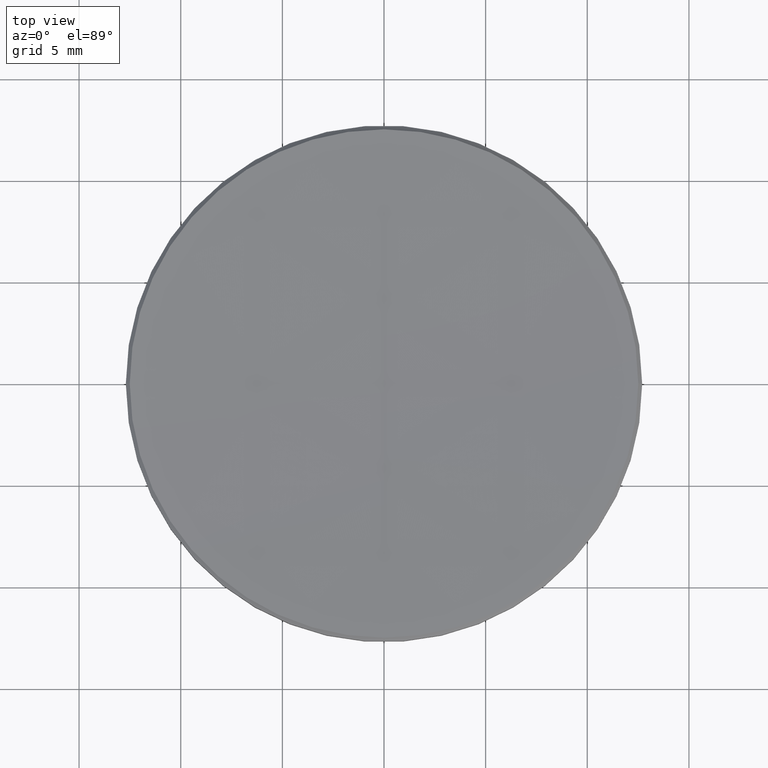
[diagram: clean part render]
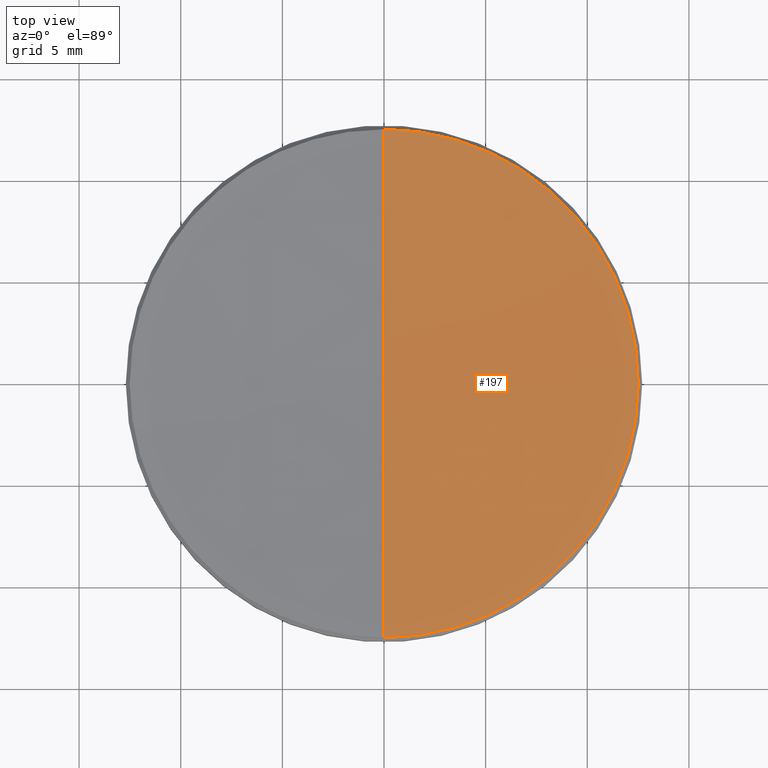
[diagram: same view with one face highlighted and labeled with its STEP entity id]
A machine part, top view. The second image highlights one B-rep face of the part: STEP entity #197.
In plain terms, the highlighted spherical surface has radius 330.58 mm.
Its self-contained STEP definition (entity closure, byte-faithful):
#10 = CARTESIAN_POINT ( 'NONE',  ( 0.000000000000000000, 12.50735029655037422, 5.992649703450315002 ) ) ;
#23 = CIRCLE ( 'NONE', #53, 12.50735029654974895 ) ;
#30 = DIRECTION ( 'NONE',  ( -1.224646799147353207E-16, -1.000000000000000000, 0.000000000000000000 ) ) ;
#32 = CARTESIAN_POINT ( 'NONE',  ( -1.531708650648511547E-15, -12.50735029655037422, 5.992649703450315002 ) ) ;
#40 = ORIENTED_EDGE ( 'NONE', *, *, #320, .T. ) ;
#41 = DIRECTION ( 'NONE',  ( 0.000000000000000000, 0.000000000000000000, -1.000000000000000000 ) ) ;
#46 = DIRECTION ( 'NONE',  ( 1.000000000000000000, 0.000000000000000000, 0.000000000000000000 ) ) ;
#48 = ORIENTED_EDGE ( 'NONE', *, *, #310, .T. ) ;
#53 = AXIS2_PLACEMENT_3D ( 'NONE', #311, #88, #189 ) ;
#54 = CARTESIAN_POINT ( 'NONE',  ( 0.000000000000000000, 0.000000000000000000, 336.3359598953767886 ) ) ;
#60 = CIRCLE ( 'NONE', #182, 330.5799999999999841 ) ;
#66 = EDGE_LOOP ( 'NONE', ( #196, #321, #48, #40 ) ) ;
#69 = CARTESIAN_POINT ( 'NONE',  ( 0.000000000000000000, 0.000000000000000000, 336.3359598953767886 ) ) ;
#80 = SPHERICAL_SURFACE ( 'NONE', #285, 330.5799999999999841 ) ;
#86 = AXIS2_PLACEMENT_3D ( 'NONE', #69, #46, #41 ) ;
#88 = DIRECTION ( 'NONE',  ( -0.000000000000000000, -0.000000000000000000, 1.000000000000000000 ) ) ;
#104 = FACE_OUTER_BOUND ( 'NONE', #66, .T. ) ;
#126 = DIRECTION ( 'NONE',  ( 1.000000000000000000, 0.000000000000000000, 0.000000000000000000 ) ) ;
#141 = DIRECTION ( 'NONE',  ( -0.000000000000000000, -0.000000000000000000, 1.000000000000000000 ) ) ;
#149 = VERTEX_POINT ( 'NONE', #206 ) ;
#163 = DIRECTION ( 'NONE',  ( -1.000000000000000000, 0.000000000000000000, 0.000000000000000000 ) ) ;
#173 = VERTEX_POINT ( 'NONE', #284 ) ;
#182 = AXIS2_PLACEMENT_3D ( 'NONE', #305, #237, #30 ) ;
#189 = DIRECTION ( 'NONE',  ( 1.000000000000000000, 0.000000000000000000, 0.000000000000000000 ) ) ;
#196 = ORIENTED_EDGE ( 'NONE', *, *, #327, .F. ) ;
#197 = ADVANCED_FACE ( 'NONE', ( #104 ), #80, .F. ) ;
#201 = EDGE_CURVE ( 'NONE', #149, #266, #60, .T. ) ;
#204 = CIRCLE ( 'NONE', #86, 330.5799999999999841 ) ;
#206 = CARTESIAN_POINT ( 'NONE',  ( 0.000000000000000000, 2.024218694310659877E-14, 5.755959895376805413 ) ) ;
#237 = DIRECTION ( 'NONE',  ( -1.000000000000000000, 1.224646799147353207E-16, 0.000000000000000000 ) ) ;
#249 = AXIS2_PLACEMENT_3D ( 'NONE', #264, #141, #126 ) ;
#256 = DIRECTION ( 'NONE',  ( 0.000000000000000000, 1.000000000000000000, 0.000000000000000000 ) ) ;
#260 = CIRCLE ( 'NONE', #249, 12.50735029654974895 ) ;
#264 = CARTESIAN_POINT ( 'NONE',  ( 0.000000000000000000, 0.000000000000000000, 5.992649703450315002 ) ) ;
#266 = VERTEX_POINT ( 'NONE', #32 ) ;
#273 = VERTEX_POINT ( 'NONE', #10 ) ;
#284 = CARTESIAN_POINT ( 'NONE',  ( 12.50735029654974895, 1.543505042782786336E-15, 5.992649703450315002 ) ) ;
#285 = AXIS2_PLACEMENT_3D ( 'NONE', #54, #163, #256 ) ;
#305 = CARTESIAN_POINT ( 'NONE',  ( 0.000000000000000000, 0.000000000000000000, 336.3359598953767886 ) ) ;
#310 = EDGE_CURVE ( 'NONE', #266, #173, #23, .T. ) ;
#311 = CARTESIAN_POINT ( 'NONE',  ( 0.000000000000000000, 0.000000000000000000, 5.992649703450315002 ) ) ;
#320 = EDGE_CURVE ( 'NONE', #173, #273, #260, .T. ) ;
#321 = ORIENTED_EDGE ( 'NONE', *, *, #201, .T. ) ;
#327 = EDGE_CURVE ( 'NONE', #149, #273, #204, .T. ) ;